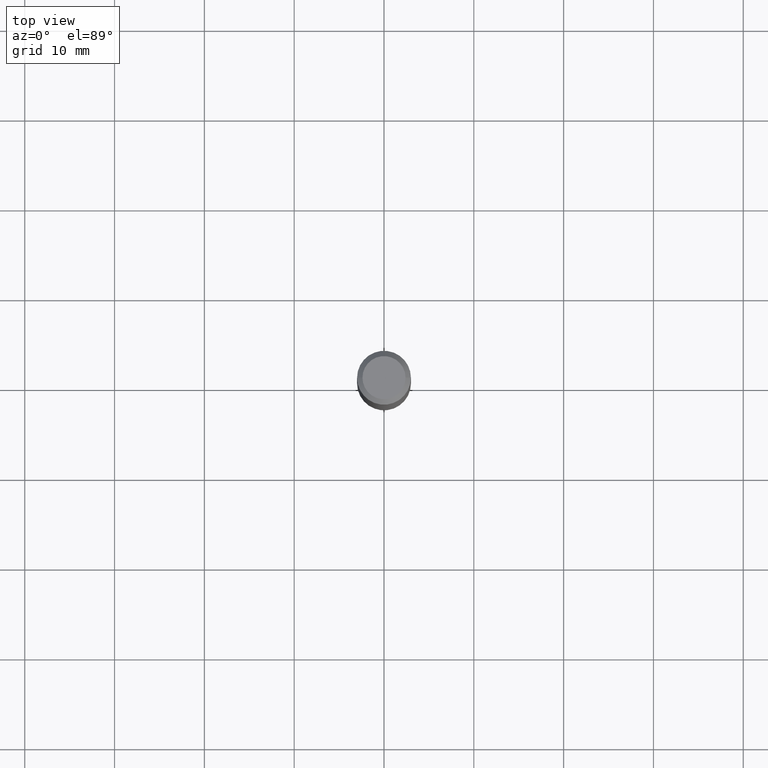
[diagram: clean part render]
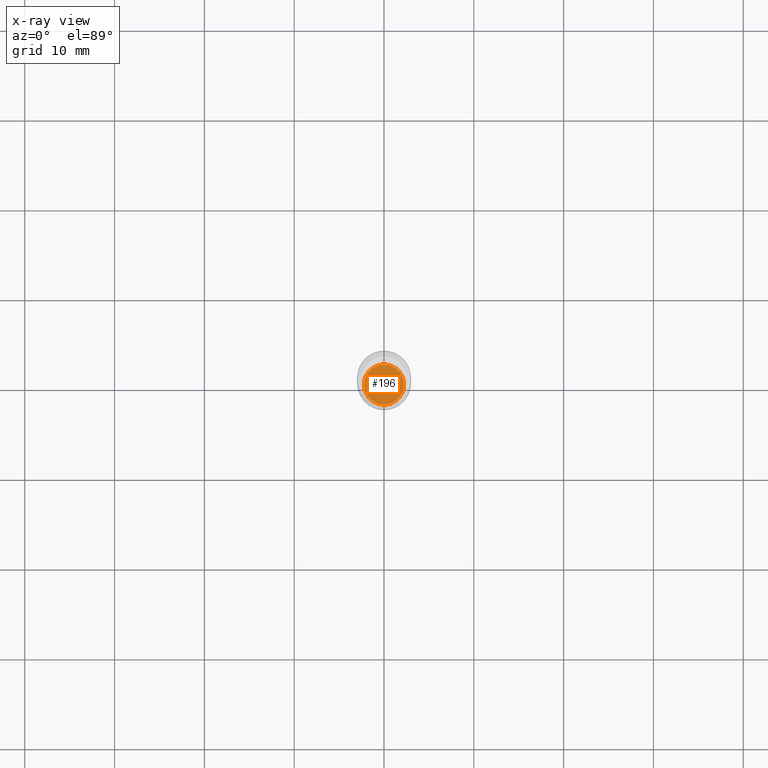
[diagram: x-ray — body ghosted, one internal face saturated and labeled with its STEP entity id]
A machine part, top view, then the same camera in x-ray: the body is ghosted and one INTERNAL B-rep face — a face not visible from any outside direction — is saturated and labeled: STEP entity #196.
In plain terms, the highlighted planar face has unit normal (-0, 0, 1).
Its self-contained STEP definition (entity closure, byte-faithful):
#13 = VERTEX_POINT ( 'NONE', #137 ) ;
#16 = FACE_OUTER_BOUND ( 'NONE', #478, .T. ) ;
#22 = DIRECTION ( 'NONE',  ( -2.445468806185136597E-29, 3.491481338843145583E-15, 1.000000000000000000 ) ) ;
#25 = DIRECTION ( 'NONE',  ( -2.438088387897960049E-29, 3.491481338843145188E-15, 1.000000000000000000 ) ) ;
#27 = AXIS2_PLACEMENT_3D ( 'NONE', #436, #65, #212 ) ;
#37 = CARTESIAN_POINT ( 'NONE',  ( -0.08809999999999999776, -5.557220110649644295E-15, -1.771700000000000719 ) ) ;
#65 = DIRECTION ( 'NONE',  ( -2.445468806185136597E-29, 3.491481338843145583E-15, 1.000000000000000000 ) ) ;
#70 = AXIS2_PLACEMENT_3D ( 'NONE', #171, #25, #280 ) ;
#78 = CIRCLE ( 'NONE', #27, 0.08809999999999999776 ) ;
#103 = PLANE ( 'NONE',  #70 ) ;
#137 = CARTESIAN_POINT ( 'NONE',  ( 0.08809999999999999776, -6.801056499932562605E-15, -1.771700000000000719 ) ) ;
#171 = CARTESIAN_POINT ( 'NONE',  ( 4.963550481035897512E-30, -1.167963171092849137E-14, -1.771700000000000719 ) ) ;
#180 = ORIENTED_EDGE ( 'NONE', *, *, #332, .F. ) ;
#196 = ADVANCED_FACE ( 'NONE', ( #16 ), #103, .F. ) ;
#212 = DIRECTION ( 'NONE',  ( 1.000000000000000000, -6.982962677686264344E-15, 0.000000000000000000 ) ) ;
#247 = DIRECTION ( 'NONE',  ( 1.000000000000000000, -6.982962677686264344E-15, 0.000000000000000000 ) ) ;
#280 = DIRECTION ( 'NONE',  ( 1.000000000000000000, -6.982962677686265922E-15, 4.876176775795935793E-29 ) ) ;
#322 = EDGE_CURVE ( 'NONE', #13, #390, #78, .T. ) ;
#332 = EDGE_CURVE ( 'NONE', #390, #13, #341, .T. ) ;
#341 = CIRCLE ( 'NONE', #411, 0.08809999999999999776 ) ;
#358 = CARTESIAN_POINT ( 'NONE',  ( 4.332637083918208108E-29, -6.185857488028402659E-15, -1.771700000000000719 ) ) ;
#390 = VERTEX_POINT ( 'NONE', #37 ) ;
#411 = AXIS2_PLACEMENT_3D ( 'NONE', #358, #22, #247 ) ;
#412 = ORIENTED_EDGE ( 'NONE', *, *, #322, .F. ) ;
#436 = CARTESIAN_POINT ( 'NONE',  ( 4.332637083918208108E-29, -6.185857488028402659E-15, -1.771700000000000719 ) ) ;
#478 = EDGE_LOOP ( 'NONE', ( #412, #180 ) ) ;